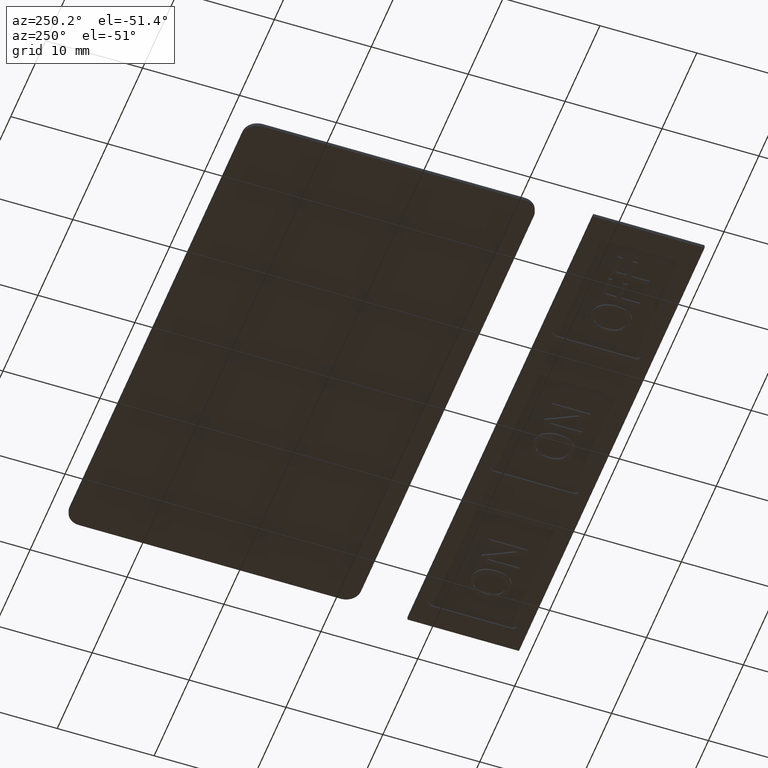
[diagram: clean part render]
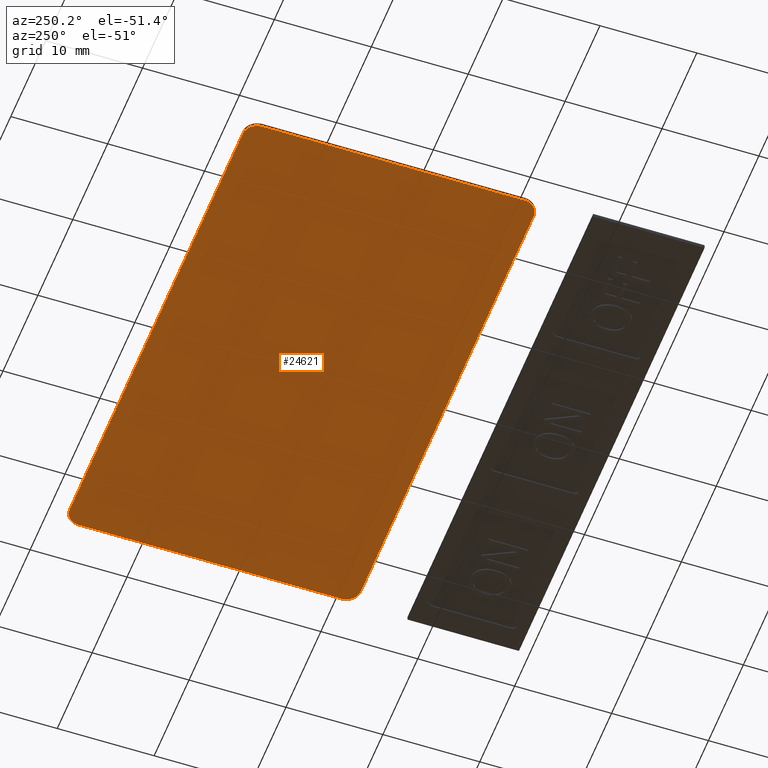
[diagram: same view with one face highlighted and labeled with its STEP entity id]
A machine part, auxiliary view. The second image highlights one B-rep face of the part: STEP entity #24621.
In plain terms, the highlighted planar face has unit normal (0, -0, 1).
Its self-contained STEP definition (entity closure, byte-faithful):
#331=PLANE('',#27553);
#2071=LINE('',#42787,#3718);
#2072=LINE('',#42791,#3719);
#2073=LINE('',#42795,#3720);
#2074=LINE('',#42798,#3721);
#3718=VECTOR('',#34692,27.05);
#3719=VECTOR('',#34695,49.6);
#3720=VECTOR('',#34698,27.05);
#3721=VECTOR('',#34701,49.6);
#5899=FACE_OUTER_BOUND('',#7227,.T.);
#7227=EDGE_LOOP('',(#21570,#21571,#21572,#21573,#21574,#21575,#21576,#21577));
#9085=CIRCLE('',#27554,1.51066017177982);
#9086=CIRCLE('',#27555,1.51066017177982);
#9087=CIRCLE('',#27556,1.51066017177982);
#9088=CIRCLE('',#27557,1.51066017177982);
#11261=VERTEX_POINT('',#42783);
#11262=VERTEX_POINT('',#42784);
#11263=VERTEX_POINT('',#42786);
#11264=VERTEX_POINT('',#42788);
#11265=VERTEX_POINT('',#42790);
#11266=VERTEX_POINT('',#42792);
#11267=VERTEX_POINT('',#42794);
#11268=VERTEX_POINT('',#42796);
#14731=EDGE_CURVE('',#11261,#11262,#9085,.T.);
#14732=EDGE_CURVE('',#11262,#11263,#2071,.T.);
#14733=EDGE_CURVE('',#11263,#11264,#9086,.T.);
#14734=EDGE_CURVE('',#11264,#11265,#2072,.T.);
#14735=EDGE_CURVE('',#11265,#11266,#9087,.T.);
#14736=EDGE_CURVE('',#11266,#11267,#2073,.T.);
#14737=EDGE_CURVE('',#11267,#11268,#9088,.T.);
#14738=EDGE_CURVE('',#11268,#11261,#2074,.T.);
#21570=ORIENTED_EDGE('',*,*,#14731,.T.);
#21571=ORIENTED_EDGE('',*,*,#14732,.T.);
#21572=ORIENTED_EDGE('',*,*,#14733,.T.);
#21573=ORIENTED_EDGE('',*,*,#14734,.T.);
#21574=ORIENTED_EDGE('',*,*,#14735,.T.);
#21575=ORIENTED_EDGE('',*,*,#14736,.T.);
#21576=ORIENTED_EDGE('',*,*,#14737,.T.);
#21577=ORIENTED_EDGE('',*,*,#14738,.T.);
#24621=ADVANCED_FACE('',(#5899),#331,.F.);
#27553=AXIS2_PLACEMENT_3D('',#42782,#34688,#34689);
#27554=AXIS2_PLACEMENT_3D('',#42785,#34690,#34691);
#27555=AXIS2_PLACEMENT_3D('',#42789,#34693,#34694);
#27556=AXIS2_PLACEMENT_3D('',#42793,#34696,#34697);
#27557=AXIS2_PLACEMENT_3D('',#42797,#34699,#34700);
#34688=DIRECTION('center_axis',(1.19117678683756E-15,-1.03039885219749E-17,
1.));
#34689=DIRECTION('ref_axis',(-1.,-1.4210854715202E-15,1.19071419391048E-15));
#34690=DIRECTION('center_axis',(-1.19117678683756E-15,1.03039885219751E-17,
-1.));
#34691=DIRECTION('ref_axis',(7.24558038908854E-16,-1.,-1.0303988521976E-17));
#34692=DIRECTION('',(-7.24558038908854E-16,1.,1.0303988521976E-17));
#34693=DIRECTION('center_axis',(-1.19117678683756E-15,1.03039885219751E-17,
-1.));
#34694=DIRECTION('ref_axis',(-1.,-7.24558038908854E-16,1.19117678683756E-15));
#34695=DIRECTION('',(1.,3.66421579352352E-16,-1.19117678683756E-15));
#34696=DIRECTION('center_axis',(-1.19117678683756E-15,1.03039885219751E-17,
-1.));
#34697=DIRECTION('ref_axis',(-6.60396385294914E-15,1.,1.0303988521983E-17));
#34698=DIRECTION('',(-3.21560500597155E-15,-1.,-1.03039885219713E-17));
#34699=DIRECTION('center_axis',(-1.19117678683756E-15,1.03039885219751E-17,
-1.));
#34700=DIRECTION('ref_axis',(1.,7.24558038908854E-16,-1.19117678683756E-15));
#34701=DIRECTION('',(-1.,-3.66421579352352E-16,1.19117678683756E-15));
#42782=CARTESIAN_POINT('Origin',(4.95616511549895E-13,-67.2250000000002,
0.17500000000001));
#42783=CARTESIAN_POINT('',(-24.7999999999995,-82.2606601717801,0.175000000000045));
#42784=CARTESIAN_POINT('',(-26.3106601717794,-80.7500000000002,0.175000000000045));
#42785=CARTESIAN_POINT('Origin',(-24.7999999999995,-80.7500000000002,0.175000000000045));
#42786=CARTESIAN_POINT('',(-26.3106601717794,-53.7000000000002,0.175000000000045));
#42787=CARTESIAN_POINT('',(-26.3106601717794,-80.7500000000002,0.175000000000045));
#42788=CARTESIAN_POINT('',(-24.7999999999995,-52.1893398282204,0.175000000000045));
#42789=CARTESIAN_POINT('Origin',(-24.7999999999995,-53.7000000000002,0.175000000000045));
#42790=CARTESIAN_POINT('',(24.8000000000005,-52.1893398282204,0.174999999999983));
#42791=CARTESIAN_POINT('',(-24.7999999999995,-52.1893398282204,0.175000000000045));
#42792=CARTESIAN_POINT('',(26.3106601717804,-53.7000000000002,0.174999999999983));
#42793=CARTESIAN_POINT('Origin',(24.8000000000005,-53.7000000000002,0.174999999999983));
#42794=CARTESIAN_POINT('',(26.3106601717803,-80.7500000000002,0.174999999999983));
#42795=CARTESIAN_POINT('',(26.3106601717804,-53.7000000000002,0.174999999999983));
#42796=CARTESIAN_POINT('',(24.8000000000005,-82.2606601717801,0.174999999999983));
#42797=CARTESIAN_POINT('Origin',(24.8000000000005,-80.7500000000002,0.174999999999983));
#42798=CARTESIAN_POINT('',(24.8000000000005,-82.2606601717801,0.174999999999983));